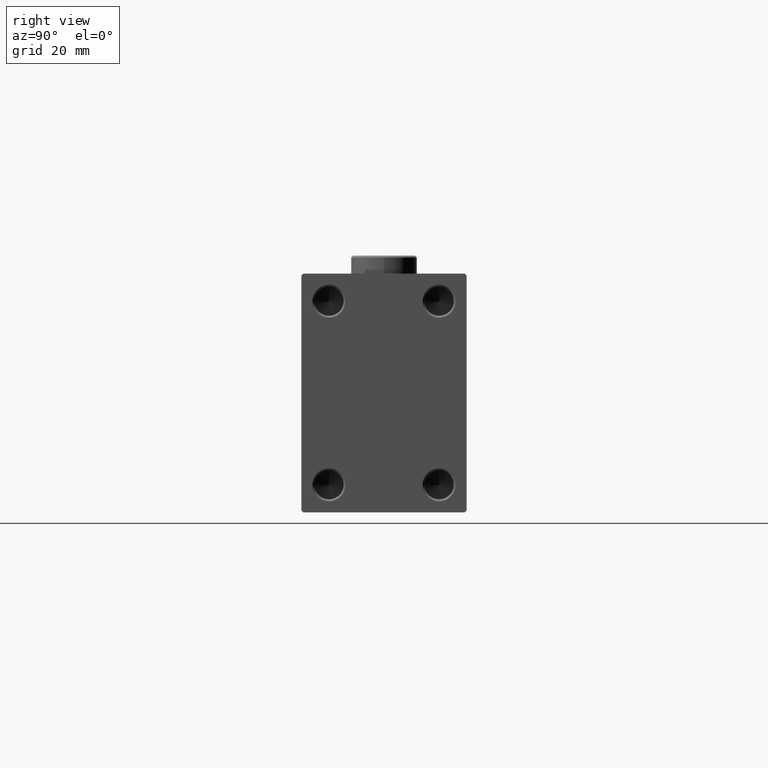
[diagram: clean part render]
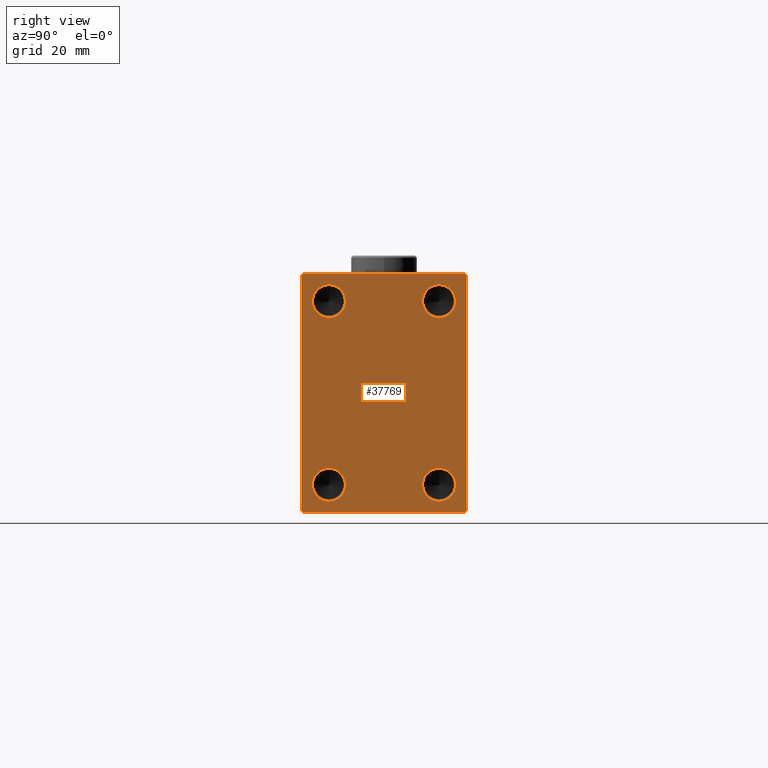
[diagram: same view with one face highlighted and labeled with its STEP entity id]
A machine part, right view. The second image highlights one B-rep face of the part: STEP entity #37769.
In plain terms, the highlighted planar face has unit normal (1, 0, 0).
Its self-contained STEP definition (entity closure, byte-faithful):
#73 = VECTOR ( 'NONE', #34351, 1000.000000000000000 ) ;
#367 = CARTESIAN_POINT ( 'NONE',  ( 170.0000000000000000, 15.00000000000000178, -25.00000000000000000 ) ) ;
#619 = FACE_BOUND ( 'NONE', #13682, .T. ) ;
#979 = VECTOR ( 'NONE', #20696, 1000.000000000000000 ) ;
#1040 = VERTEX_POINT ( 'NONE', #2545 ) ;
#1292 = EDGE_CURVE ( 'NONE', #12106, #17532, #16080, .T. ) ;
#1521 = AXIS2_PLACEMENT_3D ( 'NONE', #367, #35632, #14651 ) ;
#1984 = CARTESIAN_POINT ( 'NONE',  ( 170.0000000000000000, -15.00000000000000000, -25.00000000000000000 ) ) ;
#2503 = CARTESIAN_POINT ( 'NONE',  ( 170.0000000000000000, -15.00000000000000000, -20.50000000000001776 ) ) ;
#2545 = CARTESIAN_POINT ( 'NONE',  ( 170.0000000000000000, 22.50000000000000000, 31.99999999999999289 ) ) ;
#2742 = EDGE_CURVE ( 'NONE', #28885, #32822, #39794, .T. ) ;
#2867 = VECTOR ( 'NONE', #26656, 1000.000000000000000 ) ;
#3317 = VERTEX_POINT ( 'NONE', #6958 ) ;
#3513 = EDGE_CURVE ( 'NONE', #3317, #31742, #20057, .T. ) ;
#3544 = ORIENTED_EDGE ( 'NONE', *, *, #10269, .T. ) ;
#4096 = FACE_BOUND ( 'NONE', #9311, .T. ) ;
#4548 = DIRECTION ( 'NONE',  ( 1.000000000000000000, 0.000000000000000000, 0.000000000000000000 ) ) ;
#4575 = CARTESIAN_POINT ( 'NONE',  ( 170.0000000000000000, 15.00000000000000178, 20.50000000000001421 ) ) ;
#4583 = CARTESIAN_POINT ( 'NONE',  ( 170.0000000000000000, 22.00000000000000000, 32.49999999999999289 ) ) ;
#5818 = DIRECTION ( 'NONE',  ( 0.000000000000000000, 0.000000000000000000, -1.000000000000000000 ) ) ;
#5896 = CIRCLE ( 'NONE', #7328, 4.499999999999976019 ) ;
#6128 = ORIENTED_EDGE ( 'NONE', *, *, #34720, .F. ) ;
#6201 = CIRCLE ( 'NONE', #42968, 4.499999999999976019 ) ;
#6573 = CIRCLE ( 'NONE', #13940, 4.499999999999976019 ) ;
#6791 = CARTESIAN_POINT ( 'NONE',  ( 170.0000000000000000, -22.49999999999999289, -32.00000000000001421 ) ) ;
#6958 = CARTESIAN_POINT ( 'NONE',  ( 170.0000000000000000, -22.49999999999999289, 31.99999999999995737 ) ) ;
#7328 = AXIS2_PLACEMENT_3D ( 'NONE', #1984, #9361, #25954 ) ;
#7546 = CARTESIAN_POINT ( 'NONE',  ( 170.0000000000000000, 0.000000000000000000, 0.000000000000000000 ) ) ;
#8240 = VERTEX_POINT ( 'NONE', #25288 ) ;
#8467 = PLANE ( 'NONE',  #17763 ) ;
#8600 = CARTESIAN_POINT ( 'NONE',  ( 170.0000000000000000, 15.00000000000000178, 25.00000000000000000 ) ) ;
#9075 = LINE ( 'NONE', #22892, #35569 ) ;
#9084 = CARTESIAN_POINT ( 'NONE',  ( 170.0000000000000000, 15.00000000000000178, -20.50000000000001421 ) ) ;
#9290 = LINE ( 'NONE', #12524, #42226 ) ;
#9311 = EDGE_LOOP ( 'NONE', ( #26372, #11860 ) ) ;
#9361 = DIRECTION ( 'NONE',  ( 1.000000000000000000, -0.000000000000000000, -0.000000000000000000 ) ) ;
#10269 = EDGE_CURVE ( 'NONE', #41297, #22679, #26736, .T. ) ;
#10302 = ORIENTED_EDGE ( 'NONE', *, *, #19162, .F. ) ;
#10321 = VECTOR ( 'NONE', #41210, 1000.000000000000000 ) ;
#11006 = EDGE_LOOP ( 'NONE', ( #10302, #27096 ) ) ;
#11090 = CARTESIAN_POINT ( 'NONE',  ( 170.0000000000000000, -21.99999999999997868, 32.49999999999998579 ) ) ;
#11158 = ORIENTED_EDGE ( 'NONE', *, *, #33494, .T. ) ;
#11463 = FACE_BOUND ( 'NONE', #11006, .T. ) ;
#11860 = ORIENTED_EDGE ( 'NONE', *, *, #16327, .F. ) ;
#12034 = EDGE_CURVE ( 'NONE', #17532, #3317, #9290, .T. ) ;
#12106 = VERTEX_POINT ( 'NONE', #4583 ) ;
#12248 = VERTEX_POINT ( 'NONE', #34624 ) ;
#12324 = VERTEX_POINT ( 'NONE', #2503 ) ;
#12524 = CARTESIAN_POINT ( 'NONE',  ( 170.0000000000000000, -27.25000000000060041, 27.24999999999908340 ) ) ;
#12943 = CARTESIAN_POINT ( 'NONE',  ( 170.0000000000000000, 15.00000000000000178, -29.49999999999998934 ) ) ;
#13060 = VERTEX_POINT ( 'NONE', #4575 ) ;
#13137 = AXIS2_PLACEMENT_3D ( 'NONE', #24362, #17669, #31740 ) ;
#13406 = EDGE_CURVE ( 'NONE', #13060, #29915, #42255, .T. ) ;
#13682 = EDGE_LOOP ( 'NONE', ( #45594, #24170 ) ) ;
#13940 = AXIS2_PLACEMENT_3D ( 'NONE', #40692, #14317, #35290 ) ;
#14317 = DIRECTION ( 'NONE',  ( 1.000000000000000000, -0.000000000000000000, -0.000000000000000000 ) ) ;
#14580 = EDGE_CURVE ( 'NONE', #1040, #12106, #9075, .T. ) ;
#14651 = DIRECTION ( 'NONE',  ( 0.000000000000000000, 0.000000000000000000, -1.000000000000000000 ) ) ;
#15527 = DIRECTION ( 'NONE',  ( -0.000000000000000000, -0.7071067811865474617, 0.7071067811865474617 ) ) ;
#15644 = VECTOR ( 'NONE', #16139, 1000.000000000000000 ) ;
#15750 = DIRECTION ( 'NONE',  ( 0.000000000000000000, 0.000000000000000000, -1.000000000000000000 ) ) ;
#15915 = CARTESIAN_POINT ( 'NONE',  ( 170.0000000000000000, 21.99999999999999289, -32.50000000000000711 ) ) ;
#16080 = LINE ( 'NONE', #30146, #10321 ) ;
#16139 = DIRECTION ( 'NONE',  ( 0.000000000000000000, -1.067522139062650425E-16, 1.000000000000000000 ) ) ;
#16327 = EDGE_CURVE ( 'NONE', #32822, #28885, #6201, .T. ) ;
#16514 = CARTESIAN_POINT ( 'NONE',  ( 170.0000000000000000, -22.49999999999999289, -32.50000000000000711 ) ) ;
#16592 = ORIENTED_EDGE ( 'NONE', *, *, #14580, .T. ) ;
#16633 = LINE ( 'NONE', #27896, #31037 ) ;
#17298 = AXIS2_PLACEMENT_3D ( 'NONE', #35462, #17941, #23227 ) ;
#17532 = VERTEX_POINT ( 'NONE', #11090 ) ;
#17669 = DIRECTION ( 'NONE',  ( 1.000000000000000000, -0.000000000000000000, -0.000000000000000000 ) ) ;
#17763 = AXIS2_PLACEMENT_3D ( 'NONE', #7546, #4548, #35664 ) ;
#17941 = DIRECTION ( 'NONE',  ( 1.000000000000000000, -0.000000000000000000, -0.000000000000000000 ) ) ;
#19162 = EDGE_CURVE ( 'NONE', #29915, #13060, #37197, .T. ) ;
#19552 = CARTESIAN_POINT ( 'NONE',  ( 170.0000000000000000, 22.50000000000000711, -31.99999999999997868 ) ) ;
#20057 = LINE ( 'NONE', #33674, #73 ) ;
#20696 = DIRECTION ( 'NONE',  ( -0.000000000000000000, 0.7071067811865279218, 0.7071067811865672237 ) ) ;
#21815 = FACE_OUTER_BOUND ( 'NONE', #33498, .T. ) ;
#22650 = DIRECTION ( 'NONE',  ( 1.000000000000000000, -0.000000000000000000, -0.000000000000000000 ) ) ;
#22679 = VERTEX_POINT ( 'NONE', #19552 ) ;
#22892 = CARTESIAN_POINT ( 'NONE',  ( 170.0000000000000000, 27.24999999999999289, 27.24999999999999289 ) ) ;
#23202 = LINE ( 'NONE', #16514, #2867 ) ;
#23227 = DIRECTION ( 'NONE',  ( 0.000000000000000000, 0.000000000000000000, -1.000000000000000000 ) ) ;
#23331 = CARTESIAN_POINT ( 'NONE',  ( 170.0000000000000000, 15.00000000000000178, -25.00000000000000000 ) ) ;
#24170 = ORIENTED_EDGE ( 'NONE', *, *, #27644, .F. ) ;
#24362 = CARTESIAN_POINT ( 'NONE',  ( 170.0000000000000000, -15.00000000000000000, 25.00000000000000000 ) ) ;
#24885 = ORIENTED_EDGE ( 'NONE', *, *, #1292, .T. ) ;
#25224 = AXIS2_PLACEMENT_3D ( 'NONE', #8600, #22650, #15750 ) ;
#25288 = CARTESIAN_POINT ( 'NONE',  ( 170.0000000000000000, -15.00000000000000000, 29.49999999999998579 ) ) ;
#25954 = DIRECTION ( 'NONE',  ( 0.000000000000000000, 0.000000000000000000, -1.000000000000000000 ) ) ;
#26372 = ORIENTED_EDGE ( 'NONE', *, *, #2742, .F. ) ;
#26656 = DIRECTION ( 'NONE',  ( 0.000000000000000000, 1.000000000000000000, 0.000000000000000000 ) ) ;
#26671 = EDGE_LOOP ( 'NONE', ( #6128, #44836 ) ) ;
#26736 = LINE ( 'NONE', #27186, #979 ) ;
#27096 = ORIENTED_EDGE ( 'NONE', *, *, #13406, .F. ) ;
#27186 = CARTESIAN_POINT ( 'NONE',  ( 170.0000000000000000, 27.25000000000061817, -27.24999999999910472 ) ) ;
#27316 = DIRECTION ( 'NONE',  ( 0.000000000000000000, 0.000000000000000000, -1.000000000000000000 ) ) ;
#27644 = EDGE_CURVE ( 'NONE', #12248, #8240, #33002, .T. ) ;
#27896 = CARTESIAN_POINT ( 'NONE',  ( 170.0000000000000000, -27.24999999999921840, -27.25000000000110845 ) ) ;
#28885 = VERTEX_POINT ( 'NONE', #9084 ) ;
#29425 = FACE_BOUND ( 'NONE', #26671, .T. ) ;
#29915 = VERTEX_POINT ( 'NONE', #40299 ) ;
#29974 = LINE ( 'NONE', #30442, #15644 ) ;
#30146 = CARTESIAN_POINT ( 'NONE',  ( 170.0000000000000000, 22.50000000000000000, 32.49999999999999289 ) ) ;
#30442 = CARTESIAN_POINT ( 'NONE',  ( 170.0000000000000000, 22.50000000000000711, -32.50000000000000711 ) ) ;
#30783 = CARTESIAN_POINT ( 'NONE',  ( 170.0000000000000000, -15.00000000000000000, 25.00000000000000000 ) ) ;
#31037 = VECTOR ( 'NONE', #41072, 1000.000000000000000 ) ;
#31740 = DIRECTION ( 'NONE',  ( 0.000000000000000000, 0.000000000000000000, -1.000000000000000000 ) ) ;
#31742 = VERTEX_POINT ( 'NONE', #6791 ) ;
#31868 = CIRCLE ( 'NONE', #43648, 4.499999999999976019 ) ;
#32822 = VERTEX_POINT ( 'NONE', #12943 ) ;
#33002 = CIRCLE ( 'NONE', #13137, 4.499999999999976019 ) ;
#33494 = EDGE_CURVE ( 'NONE', #34281, #41297, #23202, .T. ) ;
#33498 = EDGE_LOOP ( 'NONE', ( #24885, #37213, #41122, #41185, #11158, #3544, #34532, #16592 ) ) ;
#33674 = CARTESIAN_POINT ( 'NONE',  ( 170.0000000000000000, -22.49999999999999289, 32.49999999999998579 ) ) ;
#34281 = VERTEX_POINT ( 'NONE', #42376 ) ;
#34351 = DIRECTION ( 'NONE',  ( 0.000000000000000000, 0.000000000000000000, -1.000000000000000000 ) ) ;
#34532 = ORIENTED_EDGE ( 'NONE', *, *, #41293, .T. ) ;
#34624 = CARTESIAN_POINT ( 'NONE',  ( 170.0000000000000000, -15.00000000000000000, 20.50000000000001776 ) ) ;
#34720 = EDGE_CURVE ( 'NONE', #12324, #43672, #6573, .T. ) ;
#35290 = DIRECTION ( 'NONE',  ( 0.000000000000000000, 0.000000000000000000, -1.000000000000000000 ) ) ;
#35462 = CARTESIAN_POINT ( 'NONE',  ( 170.0000000000000000, 15.00000000000000178, 25.00000000000000000 ) ) ;
#35569 = VECTOR ( 'NONE', #15527, 1000.000000000000114 ) ;
#35632 = DIRECTION ( 'NONE',  ( 1.000000000000000000, -0.000000000000000000, -0.000000000000000000 ) ) ;
#35664 = DIRECTION ( 'NONE',  ( 0.000000000000000000, 0.000000000000000000, -1.000000000000000000 ) ) ;
#36182 = EDGE_CURVE ( 'NONE', #43672, #12324, #5896, .T. ) ;
#37197 = CIRCLE ( 'NONE', #17298, 4.499999999999976019 ) ;
#37213 = ORIENTED_EDGE ( 'NONE', *, *, #12034, .T. ) ;
#37396 = DIRECTION ( 'NONE',  ( 1.000000000000000000, -0.000000000000000000, -0.000000000000000000 ) ) ;
#37769 = ADVANCED_FACE ( 'NONE', ( #11463, #619, #29425, #4096, #21815 ), #8467, .T. ) ;
#38460 = EDGE_CURVE ( 'NONE', #31742, #34281, #16633, .T. ) ;
#39794 = CIRCLE ( 'NONE', #1521, 4.499999999999976019 ) ;
#40299 = CARTESIAN_POINT ( 'NONE',  ( 170.0000000000000000, 15.00000000000000178, 29.49999999999998934 ) ) ;
#40692 = CARTESIAN_POINT ( 'NONE',  ( 170.0000000000000000, -15.00000000000000000, -25.00000000000000000 ) ) ;
#41072 = DIRECTION ( 'NONE',  ( -0.000000000000000000, 0.7071067811865721087, -0.7071067811865230368 ) ) ;
#41122 = ORIENTED_EDGE ( 'NONE', *, *, #3513, .T. ) ;
#41185 = ORIENTED_EDGE ( 'NONE', *, *, #38460, .T. ) ;
#41210 = DIRECTION ( 'NONE',  ( 0.000000000000000000, -1.000000000000000000, -1.541976423090495633E-16 ) ) ;
#41226 = CARTESIAN_POINT ( 'NONE',  ( 170.0000000000000000, -15.00000000000000000, -29.49999999999998579 ) ) ;
#41293 = EDGE_CURVE ( 'NONE', #22679, #1040, #29974, .T. ) ;
#41297 = VERTEX_POINT ( 'NONE', #15915 ) ;
#41323 = DIRECTION ( 'NONE',  ( 0.000000000000000000, -0.7071067811865279218, -0.7071067811865672237 ) ) ;
#42226 = VECTOR ( 'NONE', #41323, 1000.000000000000000 ) ;
#42255 = CIRCLE ( 'NONE', #25224, 4.499999999999976019 ) ;
#42376 = CARTESIAN_POINT ( 'NONE',  ( 170.0000000000000000, -21.99999999999996447, -32.50000000000000711 ) ) ;
#42968 = AXIS2_PLACEMENT_3D ( 'NONE', #23331, #37396, #5818 ) ;
#43146 = EDGE_CURVE ( 'NONE', #8240, #12248, #31868, .T. ) ;
#43648 = AXIS2_PLACEMENT_3D ( 'NONE', #30783, #44841, #27316 ) ;
#43672 = VERTEX_POINT ( 'NONE', #41226 ) ;
#44836 = ORIENTED_EDGE ( 'NONE', *, *, #36182, .F. ) ;
#44841 = DIRECTION ( 'NONE',  ( 1.000000000000000000, -0.000000000000000000, -0.000000000000000000 ) ) ;
#45594 = ORIENTED_EDGE ( 'NONE', *, *, #43146, .F. ) ;